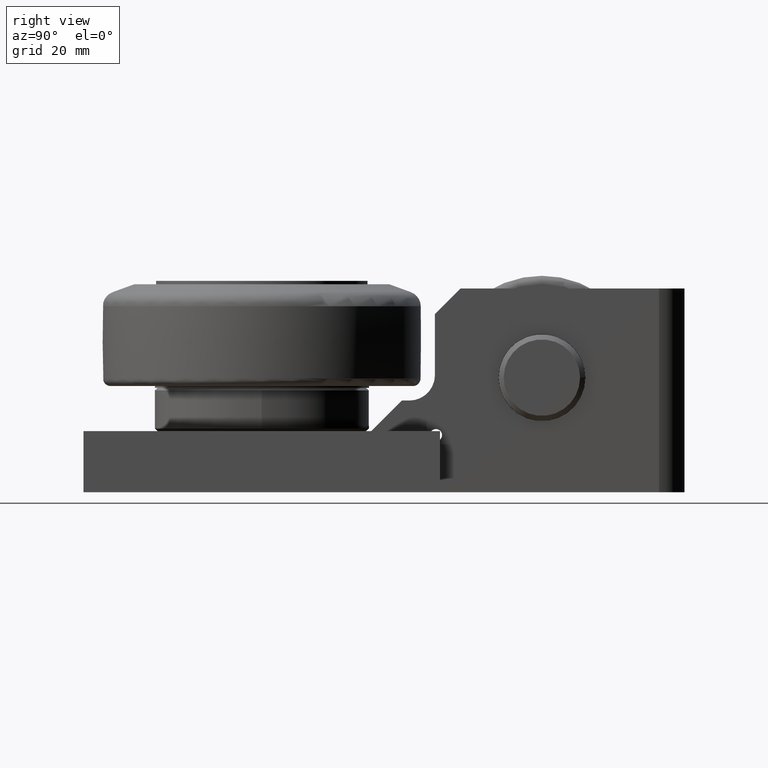
[diagram: clean part render]
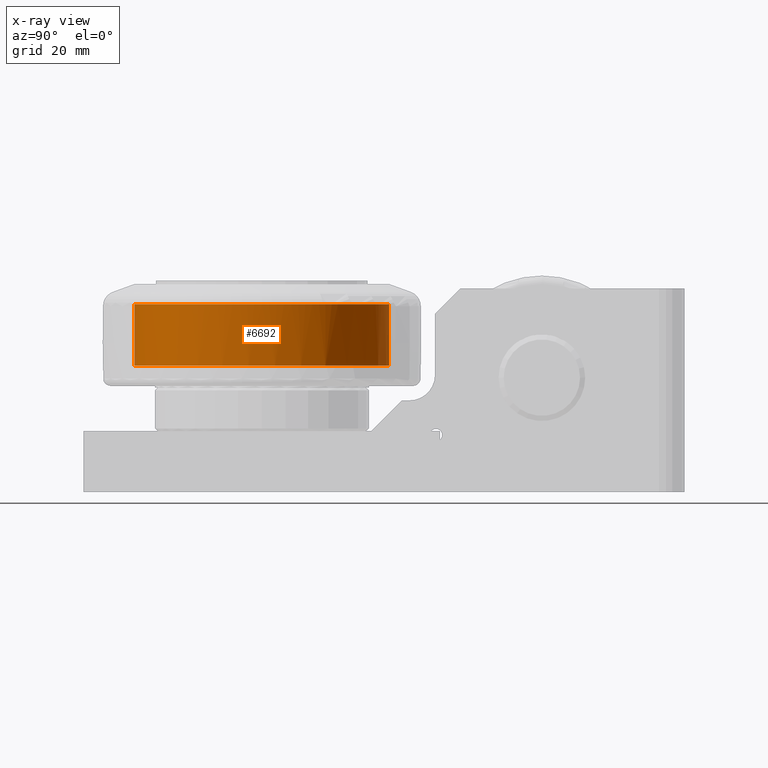
[diagram: x-ray — body ghosted, one internal face saturated and labeled with its STEP entity id]
A machine part, right view, then the same camera in x-ray: the body is ghosted and one INTERNAL B-rep face — a face not visible from any outside direction — is saturated and labeled: STEP entity #6692.
In plain terms, the highlighted cylindrical surface (partial cylindrical patch) has radius 25 mm, axis along (0, -0, 1).
Its self-contained STEP definition (entity closure, byte-faithful):
#419=FACE_OUTER_BOUND('',#813,.T.);
#813=EDGE_LOOP('',(#4751,#4752,#4753,#4754,#4755,#4756,#4757,#4758,#4759,
#4760,#4761,#4762,#4763,#4764,#4765,#4766,#4767,#4768,#4769,#4770,#4771,
#4772,#4773,#4774,#4775,#4776,#4777,#4778,#4779,#4780,#4781,#4782,#4783,
#4784,#4785,#4786,#4787,#4788,#4789,#4790,#4791,#4792,#4793,#4794,#4795,
#4796,#4797,#4798,#4799,#4800,#4801,#4802,#4803,#4804,#4805,#4806,#4807,
#4808,#4809,#4810,#4811,#4812,#4813,#4814,#4815,#4816,#4817,#4818,#4819,
#4820,#4821,#4822,#4823,#4824,#4825,#4826,#4827,#4828,#4829,#4830,#4831,
#4832,#4833,#4834,#4835,#4836,#4837,#4838));
#1205=CIRCLE('',#7164,25.);
#1206=CIRCLE('',#7165,25.);
#1209=CIRCLE('',#7169,25.);
#1210=CIRCLE('',#7170,25.);
#1211=CIRCLE('',#7171,25.);
#1212=CIRCLE('',#7172,25.);
#1213=CIRCLE('',#7173,25.);
#1214=CIRCLE('',#7174,25.);
#1215=CIRCLE('',#7175,25.);
#1216=CIRCLE('',#7176,25.);
#1217=CIRCLE('',#7177,25.);
#1218=CIRCLE('',#7178,25.);
#1219=CIRCLE('',#7179,25.);
#1220=CIRCLE('',#7180,25.);
#1221=CIRCLE('',#7181,25.);
#1222=CIRCLE('',#7182,25.);
#1223=CIRCLE('',#7183,25.);
#1224=CIRCLE('',#7184,25.);
#1225=CIRCLE('',#7185,25.);
#1226=CIRCLE('',#7186,25.);
#1227=CIRCLE('',#7187,25.);
#1228=CIRCLE('',#7188,25.);
#1229=CIRCLE('',#7189,25.);
#1230=CIRCLE('',#7190,25.);
#1231=CIRCLE('',#7191,25.);
#1232=CIRCLE('',#7192,25.);
#1233=CIRCLE('',#7193,25.);
#1234=CIRCLE('',#7194,25.);
#1235=CIRCLE('',#7195,25.);
#1236=CIRCLE('',#7196,25.);
#1857=LINE('',#10649,#2194);
#1858=LINE('',#10651,#2195);
#1866=LINE('',#10683,#2203);
#1867=LINE('',#10685,#2204);
#1990=LINE('',#11365,#2327);
#1991=LINE('',#11369,#2328);
#1992=LINE('',#11373,#2329);
#1993=LINE('',#11377,#2330);
#1994=LINE('',#11381,#2331);
#1995=LINE('',#11385,#2332);
#1996=LINE('',#11389,#2333);
#1997=LINE('',#11393,#2334);
#1998=LINE('',#11397,#2335);
#1999=LINE('',#11401,#2336);
#2000=LINE('',#11405,#2337);
#2001=LINE('',#11409,#2338);
#2002=LINE('',#11413,#2339);
#2003=LINE('',#11417,#2340);
#2004=LINE('',#11421,#2341);
#2005=LINE('',#11425,#2342);
#2006=LINE('',#11429,#2343);
#2007=LINE('',#11433,#2344);
#2008=LINE('',#11437,#2345);
#2009=LINE('',#11441,#2346);
#2010=LINE('',#11445,#2347);
#2011=LINE('',#11449,#2348);
#2012=LINE('',#11453,#2349);
#2013=LINE('',#11457,#2350);
#2014=LINE('',#11461,#2351);
#2015=LINE('',#11465,#2352);
#2016=LINE('',#11469,#2353);
#2194=VECTOR('',#8108,25.);
#2195=VECTOR('',#8109,10.);
#2203=VECTOR('',#8133,10.);
#2204=VECTOR('',#8134,25.);
#2327=VECTOR('',#8573,10.);
#2328=VECTOR('',#8576,10.);
#2329=VECTOR('',#8579,10.);
#2330=VECTOR('',#8582,10.);
#2331=VECTOR('',#8585,10.);
#2332=VECTOR('',#8588,10.);
#2333=VECTOR('',#8591,10.);
#2334=VECTOR('',#8594,10.);
#2335=VECTOR('',#8597,10.);
#2336=VECTOR('',#8600,10.);
#2337=VECTOR('',#8603,10.);
#2338=VECTOR('',#8606,10.);
#2339=VECTOR('',#8609,10.);
#2340=VECTOR('',#8612,10.);
#2341=VECTOR('',#8615,10.);
#2342=VECTOR('',#8618,10.);
#2343=VECTOR('',#8621,10.);
#2344=VECTOR('',#8624,10.);
#2345=VECTOR('',#8627,10.);
#2346=VECTOR('',#8630,10.);
#2347=VECTOR('',#8633,10.);
#2348=VECTOR('',#8636,10.);
#2349=VECTOR('',#8639,10.);
#2350=VECTOR('',#8642,10.);
#2351=VECTOR('',#8645,10.);
#2352=VECTOR('',#8648,10.);
#2353=VECTOR('',#8651,10.);
#2531=VERTEX_POINT('',#10647);
#2532=VERTEX_POINT('',#10648);
#2533=VERTEX_POINT('',#10650);
#2548=VERTEX_POINT('',#10680);
#2549=VERTEX_POINT('',#10682);
#2550=VERTEX_POINT('',#10684);
#2704=VERTEX_POINT('',#11354);
#2707=VERTEX_POINT('',#11362);
#2708=VERTEX_POINT('',#11364);
#2709=VERTEX_POINT('',#11366);
#2710=VERTEX_POINT('',#11368);
#2711=VERTEX_POINT('',#11370);
#2712=VERTEX_POINT('',#11372);
#2713=VERTEX_POINT('',#11374);
#2714=VERTEX_POINT('',#11376);
#2715=VERTEX_POINT('',#11378);
#2716=VERTEX_POINT('',#11380);
#2717=VERTEX_POINT('',#11382);
#2718=VERTEX_POINT('',#11384);
#2719=VERTEX_POINT('',#11386);
#2720=VERTEX_POINT('',#11388);
#2721=VERTEX_POINT('',#11390);
#2722=VERTEX_POINT('',#11392);
#2723=VERTEX_POINT('',#11394);
#2724=VERTEX_POINT('',#11396);
#2725=VERTEX_POINT('',#11398);
#2726=VERTEX_POINT('',#11400);
#2727=VERTEX_POINT('',#11402);
#2728=VERTEX_POINT('',#11404);
#2729=VERTEX_POINT('',#11406);
#2730=VERTEX_POINT('',#11408);
#2731=VERTEX_POINT('',#11410);
#2732=VERTEX_POINT('',#11412);
#2733=VERTEX_POINT('',#11414);
#2734=VERTEX_POINT('',#11416);
#2735=VERTEX_POINT('',#11418);
#2736=VERTEX_POINT('',#11420);
#2737=VERTEX_POINT('',#11422);
#2738=VERTEX_POINT('',#11424);
#2739=VERTEX_POINT('',#11426);
#2740=VERTEX_POINT('',#11428);
#2741=VERTEX_POINT('',#11430);
#2742=VERTEX_POINT('',#11432);
#2743=VERTEX_POINT('',#11434);
#2744=VERTEX_POINT('',#11436);
#2745=VERTEX_POINT('',#11438);
#2746=VERTEX_POINT('',#11440);
#2747=VERTEX_POINT('',#11442);
#2748=VERTEX_POINT('',#11444);
#2749=VERTEX_POINT('',#11446);
#2750=VERTEX_POINT('',#11448);
#2751=VERTEX_POINT('',#11450);
#2752=VERTEX_POINT('',#11452);
#2753=VERTEX_POINT('',#11454);
#2754=VERTEX_POINT('',#11456);
#2755=VERTEX_POINT('',#11458);
#2756=VERTEX_POINT('',#11460);
#2757=VERTEX_POINT('',#11462);
#2758=VERTEX_POINT('',#11464);
#2759=VERTEX_POINT('',#11466);
#2760=VERTEX_POINT('',#11468);
#3185=EDGE_CURVE('',#2531,#2532,#1857,.T.);
#3186=EDGE_CURVE('',#2531,#2533,#1858,.T.);
#3202=EDGE_CURVE('',#2549,#2548,#1866,.T.);
#3203=EDGE_CURVE('',#2549,#2550,#1867,.T.);
#3426=EDGE_CURVE('',#2704,#2532,#1205,.T.);
#3427=EDGE_CURVE('',#2550,#2704,#1206,.T.);
#3430=EDGE_CURVE('',#2548,#2707,#1209,.T.);
#3431=EDGE_CURVE('',#2708,#2707,#1990,.T.);
#3432=EDGE_CURVE('',#2707,#2709,#1210,.T.);
#3433=EDGE_CURVE('',#2710,#2709,#1991,.T.);
#3434=EDGE_CURVE('',#2709,#2711,#1211,.T.);
#3435=EDGE_CURVE('',#2712,#2711,#1992,.T.);
#3436=EDGE_CURVE('',#2711,#2713,#1212,.T.);
#3437=EDGE_CURVE('',#2714,#2713,#1993,.T.);
#3438=EDGE_CURVE('',#2713,#2715,#1213,.T.);
#3439=EDGE_CURVE('',#2716,#2715,#1994,.T.);
#3440=EDGE_CURVE('',#2715,#2717,#1214,.T.);
#3441=EDGE_CURVE('',#2718,#2717,#1995,.T.);
#3442=EDGE_CURVE('',#2717,#2719,#1215,.T.);
#3443=EDGE_CURVE('',#2720,#2719,#1996,.T.);
#3444=EDGE_CURVE('',#2719,#2721,#1216,.T.);
#3445=EDGE_CURVE('',#2722,#2721,#1997,.T.);
#3446=EDGE_CURVE('',#2721,#2723,#1217,.T.);
#3447=EDGE_CURVE('',#2724,#2723,#1998,.T.);
#3448=EDGE_CURVE('',#2723,#2725,#1218,.T.);
#3449=EDGE_CURVE('',#2726,#2725,#1999,.T.);
#3450=EDGE_CURVE('',#2725,#2727,#1219,.T.);
#3451=EDGE_CURVE('',#2728,#2727,#2000,.T.);
#3452=EDGE_CURVE('',#2727,#2729,#1220,.T.);
#3453=EDGE_CURVE('',#2730,#2729,#2001,.T.);
#3454=EDGE_CURVE('',#2729,#2731,#1221,.T.);
#3455=EDGE_CURVE('',#2732,#2731,#2002,.T.);
#3456=EDGE_CURVE('',#2731,#2733,#1222,.T.);
#3457=EDGE_CURVE('',#2734,#2733,#2003,.T.);
#3458=EDGE_CURVE('',#2733,#2735,#1223,.T.);
#3459=EDGE_CURVE('',#2736,#2735,#2004,.T.);
#3460=EDGE_CURVE('',#2735,#2737,#1224,.T.);
#3461=EDGE_CURVE('',#2738,#2737,#2005,.T.);
#3462=EDGE_CURVE('',#2737,#2739,#1225,.T.);
#3463=EDGE_CURVE('',#2740,#2739,#2006,.T.);
#3464=EDGE_CURVE('',#2739,#2741,#1226,.T.);
#3465=EDGE_CURVE('',#2742,#2741,#2007,.T.);
#3466=EDGE_CURVE('',#2741,#2743,#1227,.T.);
#3467=EDGE_CURVE('',#2744,#2743,#2008,.T.);
#3468=EDGE_CURVE('',#2743,#2745,#1228,.T.);
#3469=EDGE_CURVE('',#2746,#2745,#2009,.T.);
#3470=EDGE_CURVE('',#2745,#2747,#1229,.T.);
#3471=EDGE_CURVE('',#2748,#2747,#2010,.T.);
#3472=EDGE_CURVE('',#2747,#2749,#1230,.T.);
#3473=EDGE_CURVE('',#2750,#2749,#2011,.T.);
#3474=EDGE_CURVE('',#2749,#2751,#1231,.T.);
#3475=EDGE_CURVE('',#2752,#2751,#2012,.T.);
#3476=EDGE_CURVE('',#2751,#2753,#1232,.T.);
#3477=EDGE_CURVE('',#2754,#2753,#2013,.T.);
#3478=EDGE_CURVE('',#2753,#2755,#1233,.T.);
#3479=EDGE_CURVE('',#2756,#2755,#2014,.T.);
#3480=EDGE_CURVE('',#2755,#2757,#1234,.T.);
#3481=EDGE_CURVE('',#2758,#2757,#2015,.T.);
#3482=EDGE_CURVE('',#2757,#2759,#1235,.T.);
#3483=EDGE_CURVE('',#2760,#2759,#2016,.T.);
#3484=EDGE_CURVE('',#2759,#2533,#1236,.T.);
#4751=ORIENTED_EDGE('',*,*,#3185,.T.);
#4752=ORIENTED_EDGE('',*,*,#3426,.F.);
#4753=ORIENTED_EDGE('',*,*,#3427,.F.);
#4754=ORIENTED_EDGE('',*,*,#3203,.F.);
#4755=ORIENTED_EDGE('',*,*,#3202,.T.);
#4756=ORIENTED_EDGE('',*,*,#3430,.T.);
#4757=ORIENTED_EDGE('',*,*,#3431,.F.);
#4758=ORIENTED_EDGE('',*,*,#3431,.T.);
#4759=ORIENTED_EDGE('',*,*,#3432,.T.);
#4760=ORIENTED_EDGE('',*,*,#3433,.F.);
#4761=ORIENTED_EDGE('',*,*,#3433,.T.);
#4762=ORIENTED_EDGE('',*,*,#3434,.T.);
#4763=ORIENTED_EDGE('',*,*,#3435,.F.);
#4764=ORIENTED_EDGE('',*,*,#3435,.T.);
#4765=ORIENTED_EDGE('',*,*,#3436,.T.);
#4766=ORIENTED_EDGE('',*,*,#3437,.F.);
#4767=ORIENTED_EDGE('',*,*,#3437,.T.);
#4768=ORIENTED_EDGE('',*,*,#3438,.T.);
#4769=ORIENTED_EDGE('',*,*,#3439,.F.);
#4770=ORIENTED_EDGE('',*,*,#3439,.T.);
#4771=ORIENTED_EDGE('',*,*,#3440,.T.);
#4772=ORIENTED_EDGE('',*,*,#3441,.F.);
#4773=ORIENTED_EDGE('',*,*,#3441,.T.);
#4774=ORIENTED_EDGE('',*,*,#3442,.T.);
#4775=ORIENTED_EDGE('',*,*,#3443,.F.);
#4776=ORIENTED_EDGE('',*,*,#3443,.T.);
#4777=ORIENTED_EDGE('',*,*,#3444,.T.);
#4778=ORIENTED_EDGE('',*,*,#3445,.F.);
#4779=ORIENTED_EDGE('',*,*,#3445,.T.);
#4780=ORIENTED_EDGE('',*,*,#3446,.T.);
#4781=ORIENTED_EDGE('',*,*,#3447,.F.);
#4782=ORIENTED_EDGE('',*,*,#3447,.T.);
#4783=ORIENTED_EDGE('',*,*,#3448,.T.);
#4784=ORIENTED_EDGE('',*,*,#3449,.F.);
#4785=ORIENTED_EDGE('',*,*,#3449,.T.);
#4786=ORIENTED_EDGE('',*,*,#3450,.T.);
#4787=ORIENTED_EDGE('',*,*,#3451,.F.);
#4788=ORIENTED_EDGE('',*,*,#3451,.T.);
#4789=ORIENTED_EDGE('',*,*,#3452,.T.);
#4790=ORIENTED_EDGE('',*,*,#3453,.F.);
#4791=ORIENTED_EDGE('',*,*,#3453,.T.);
#4792=ORIENTED_EDGE('',*,*,#3454,.T.);
#4793=ORIENTED_EDGE('',*,*,#3455,.F.);
#4794=ORIENTED_EDGE('',*,*,#3455,.T.);
#4795=ORIENTED_EDGE('',*,*,#3456,.T.);
#4796=ORIENTED_EDGE('',*,*,#3457,.F.);
#4797=ORIENTED_EDGE('',*,*,#3457,.T.);
#4798=ORIENTED_EDGE('',*,*,#3458,.T.);
#4799=ORIENTED_EDGE('',*,*,#3459,.F.);
#4800=ORIENTED_EDGE('',*,*,#3459,.T.);
#4801=ORIENTED_EDGE('',*,*,#3460,.T.);
#4802=ORIENTED_EDGE('',*,*,#3461,.F.);
#4803=ORIENTED_EDGE('',*,*,#3461,.T.);
#4804=ORIENTED_EDGE('',*,*,#3462,.T.);
#4805=ORIENTED_EDGE('',*,*,#3463,.F.);
#4806=ORIENTED_EDGE('',*,*,#3463,.T.);
#4807=ORIENTED_EDGE('',*,*,#3464,.T.);
#4808=ORIENTED_EDGE('',*,*,#3465,.F.);
#4809=ORIENTED_EDGE('',*,*,#3465,.T.);
#4810=ORIENTED_EDGE('',*,*,#3466,.T.);
#4811=ORIENTED_EDGE('',*,*,#3467,.F.);
#4812=ORIENTED_EDGE('',*,*,#3467,.T.);
#4813=ORIENTED_EDGE('',*,*,#3468,.T.);
#4814=ORIENTED_EDGE('',*,*,#3469,.F.);
#4815=ORIENTED_EDGE('',*,*,#3469,.T.);
#4816=ORIENTED_EDGE('',*,*,#3470,.T.);
#4817=ORIENTED_EDGE('',*,*,#3471,.F.);
#4818=ORIENTED_EDGE('',*,*,#3471,.T.);
#4819=ORIENTED_EDGE('',*,*,#3472,.T.);
#4820=ORIENTED_EDGE('',*,*,#3473,.F.);
#4821=ORIENTED_EDGE('',*,*,#3473,.T.);
#4822=ORIENTED_EDGE('',*,*,#3474,.T.);
#4823=ORIENTED_EDGE('',*,*,#3475,.F.);
#4824=ORIENTED_EDGE('',*,*,#3475,.T.);
#4825=ORIENTED_EDGE('',*,*,#3476,.T.);
#4826=ORIENTED_EDGE('',*,*,#3477,.F.);
#4827=ORIENTED_EDGE('',*,*,#3477,.T.);
#4828=ORIENTED_EDGE('',*,*,#3478,.T.);
#4829=ORIENTED_EDGE('',*,*,#3479,.F.);
#4830=ORIENTED_EDGE('',*,*,#3479,.T.);
#4831=ORIENTED_EDGE('',*,*,#3480,.T.);
#4832=ORIENTED_EDGE('',*,*,#3481,.F.);
#4833=ORIENTED_EDGE('',*,*,#3481,.T.);
#4834=ORIENTED_EDGE('',*,*,#3482,.T.);
#4835=ORIENTED_EDGE('',*,*,#3483,.F.);
#4836=ORIENTED_EDGE('',*,*,#3483,.T.);
#4837=ORIENTED_EDGE('',*,*,#3484,.T.);
#4838=ORIENTED_EDGE('',*,*,#3186,.F.);
#6521=CYLINDRICAL_SURFACE('',#7168,25.);
#6692=ADVANCED_FACE('',(#419),#6521,.F.);
#7164=AXIS2_PLACEMENT_3D('',#11355,#8561,#8562);
#7165=AXIS2_PLACEMENT_3D('',#11356,#8563,#8564);
#7168=AXIS2_PLACEMENT_3D('',#11361,#8569,#8570);
#7169=AXIS2_PLACEMENT_3D('',#11363,#8571,#8572);
#7170=AXIS2_PLACEMENT_3D('',#11367,#8574,#8575);
#7171=AXIS2_PLACEMENT_3D('',#11371,#8577,#8578);
#7172=AXIS2_PLACEMENT_3D('',#11375,#8580,#8581);
#7173=AXIS2_PLACEMENT_3D('',#11379,#8583,#8584);
#7174=AXIS2_PLACEMENT_3D('',#11383,#8586,#8587);
#7175=AXIS2_PLACEMENT_3D('',#11387,#8589,#8590);
#7176=AXIS2_PLACEMENT_3D('',#11391,#8592,#8593);
#7177=AXIS2_PLACEMENT_3D('',#11395,#8595,#8596);
#7178=AXIS2_PLACEMENT_3D('',#11399,#8598,#8599);
#7179=AXIS2_PLACEMENT_3D('',#11403,#8601,#8602);
#7180=AXIS2_PLACEMENT_3D('',#11407,#8604,#8605);
#7181=AXIS2_PLACEMENT_3D('',#11411,#8607,#8608);
#7182=AXIS2_PLACEMENT_3D('',#11415,#8610,#8611);
#7183=AXIS2_PLACEMENT_3D('',#11419,#8613,#8614);
#7184=AXIS2_PLACEMENT_3D('',#11423,#8616,#8617);
#7185=AXIS2_PLACEMENT_3D('',#11427,#8619,#8620);
#7186=AXIS2_PLACEMENT_3D('',#11431,#8622,#8623);
#7187=AXIS2_PLACEMENT_3D('',#11435,#8625,#8626);
#7188=AXIS2_PLACEMENT_3D('',#11439,#8628,#8629);
#7189=AXIS2_PLACEMENT_3D('',#11443,#8631,#8632);
#7190=AXIS2_PLACEMENT_3D('',#11447,#8634,#8635);
#7191=AXIS2_PLACEMENT_3D('',#11451,#8637,#8638);
#7192=AXIS2_PLACEMENT_3D('',#11455,#8640,#8641);
#7193=AXIS2_PLACEMENT_3D('',#11459,#8643,#8644);
#7194=AXIS2_PLACEMENT_3D('',#11463,#8646,#8647);
#7195=AXIS2_PLACEMENT_3D('',#11467,#8649,#8650);
#7196=AXIS2_PLACEMENT_3D('',#11470,#8652,#8653);
#8108=DIRECTION('',(0.,1.21543267145725E-63,-1.));
#8109=DIRECTION('',(2.75908235754538E-34,-1.56475336131751E-33,1.));
#8133=DIRECTION('',(1.58889220411947E-33,3.52804941732168E-49,1.));
#8134=DIRECTION('',(0.,1.21543267145725E-63,-1.));
#8561=DIRECTION('center_axis',(0.,-1.21543267145725E-63,1.));
#8562=DIRECTION('ref_axis',(-1.21543267145725E-63,1.,1.21543267145725E-63));
#8563=DIRECTION('center_axis',(0.,-1.21543267145725E-63,1.));
#8564=DIRECTION('ref_axis',(-1.21543267145725E-63,1.,1.21543267145725E-63));
#8569=DIRECTION('center_axis',(0.,-1.21543267145725E-63,1.));
#8570=DIRECTION('ref_axis',(0.984807753012208,0.17364817766693,2.110576684754E-64));
#8571=DIRECTION('center_axis',(0.,-1.21543267145725E-63,1.));
#8572=DIRECTION('ref_axis',(-1.21543267145725E-63,1.,1.21543267145725E-63));
#8573=DIRECTION('',(1.56475336131751E-33,2.75908235754538E-34,1.));
#8574=DIRECTION('center_axis',(0.,-1.21543267145725E-63,1.));
#8575=DIRECTION('ref_axis',(-1.21543267145725E-63,1.,1.21543267145725E-63));
#8576=DIRECTION('',(1.49307027943532E-33,5.43433139381979E-34,1.));
#8577=DIRECTION('center_axis',(0.,-1.21543267145725E-63,1.));
#8578=DIRECTION('ref_axis',(-1.21543267145725E-63,1.,1.21543267145725E-63));
#8579=DIRECTION('',(1.37602101264251E-33,7.94446102059735E-34,1.));
#8580=DIRECTION('center_axis',(0.,-1.21543267145725E-63,1.));
#8581=DIRECTION('ref_axis',(-1.21543267145725E-63,1.,1.21543267145725E-63));
#8582=DIRECTION('',(1.21716204368078E-33,1.02132022193553E-33,1.));
#8583=DIRECTION('center_axis',(0.,-1.21543267145725E-63,1.));
#8584=DIRECTION('ref_axis',(-1.21543267145725E-63,1.,1.21543267145725E-63));
#8585=DIRECTION('',(1.02132022193553E-33,1.21716204368078E-33,1.));
#8586=DIRECTION('center_axis',(0.,-1.21543267145725E-63,1.));
#8587=DIRECTION('ref_axis',(-1.21543267145725E-63,1.,1.21543267145725E-63));
#8588=DIRECTION('',(7.94446102059734E-34,1.37602101264251E-33,1.));
#8589=DIRECTION('center_axis',(0.,-1.21543267145725E-63,1.));
#8590=DIRECTION('ref_axis',(-1.21543267145725E-63,1.,1.21543267145725E-63));
#8591=DIRECTION('',(5.43433139381979E-34,1.49307027943532E-33,1.));
#8592=DIRECTION('center_axis',(0.,-1.21543267145725E-63,1.));
#8593=DIRECTION('ref_axis',(-1.21543267145725E-63,1.,1.21543267145725E-63));
#8594=DIRECTION('',(2.75908235754539E-34,1.56475336131751E-33,1.));
#8595=DIRECTION('center_axis',(0.,-1.21543267145725E-63,1.));
#8596=DIRECTION('ref_axis',(-1.21543267145725E-63,1.,1.21543267145725E-63));
#8597=DIRECTION('',(1.94583175196509E-49,1.58889220411947E-33,1.));
#8598=DIRECTION('center_axis',(0.,-1.21543267145725E-63,1.));
#8599=DIRECTION('ref_axis',(-1.21543267145725E-63,1.,1.21543267145725E-63));
#8600=DIRECTION('',(-2.75908235754538E-34,1.56475336131751E-33,1.));
#8601=DIRECTION('center_axis',(0.,-1.21543267145725E-63,1.));
#8602=DIRECTION('ref_axis',(-1.21543267145725E-63,1.,1.21543267145725E-63));
#8603=DIRECTION('',(-5.43433139381979E-34,1.49307027943532E-33,1.));
#8604=DIRECTION('center_axis',(0.,-1.21543267145725E-63,1.));
#8605=DIRECTION('ref_axis',(-1.21543267145725E-63,1.,1.21543267145725E-63));
#8606=DIRECTION('',(-7.94446102059734E-34,1.37602101264251E-33,1.));
#8607=DIRECTION('center_axis',(0.,-1.21543267145725E-63,1.));
#8608=DIRECTION('ref_axis',(-1.21543267145725E-63,1.,1.21543267145725E-63));
#8609=DIRECTION('',(-1.02132022193553E-33,1.21716204368078E-33,1.));
#8610=DIRECTION('center_axis',(0.,-1.21543267145725E-63,1.));
#8611=DIRECTION('ref_axis',(-1.21543267145725E-63,1.,1.21543267145725E-63));
#8612=DIRECTION('',(-1.21716204368078E-33,1.02132022193553E-33,1.));
#8613=DIRECTION('center_axis',(0.,-1.21543267145725E-63,1.));
#8614=DIRECTION('ref_axis',(-1.21543267145725E-63,1.,1.21543267145725E-63));
#8615=DIRECTION('',(-1.37602101264251E-33,7.94446102059735E-34,1.));
#8616=DIRECTION('center_axis',(0.,-1.21543267145725E-63,1.));
#8617=DIRECTION('ref_axis',(-1.21543267145725E-63,1.,1.21543267145725E-63));
#8618=DIRECTION('',(-1.49307027943532E-33,5.4343313938198E-34,1.));
#8619=DIRECTION('center_axis',(0.,-1.21543267145725E-63,1.));
#8620=DIRECTION('ref_axis',(-1.21543267145725E-63,1.,1.21543267145725E-63));
#8621=DIRECTION('',(-1.56475336131751E-33,2.75908235754538E-34,1.));
#8622=DIRECTION('center_axis',(0.,-1.21543267145725E-63,1.));
#8623=DIRECTION('ref_axis',(-1.21543267145725E-63,1.,1.21543267145725E-63));
#8624=DIRECTION('',(-1.58889220411947E-33,3.52804941732169E-49,1.));
#8625=DIRECTION('center_axis',(0.,-1.21543267145725E-63,1.));
#8626=DIRECTION('ref_axis',(-1.21543267145725E-63,1.,1.21543267145725E-63));
#8627=DIRECTION('',(-1.56475336131751E-33,-2.75908235754538E-34,1.));
#8628=DIRECTION('center_axis',(0.,-1.21543267145725E-63,1.));
#8629=DIRECTION('ref_axis',(-1.21543267145725E-63,1.,1.21543267145725E-63));
#8630=DIRECTION('',(-1.49307027943532E-33,-5.43433139381978E-34,1.));
#8631=DIRECTION('center_axis',(0.,-1.21543267145725E-63,1.));
#8632=DIRECTION('ref_axis',(-1.21543267145725E-63,1.,1.21543267145725E-63));
#8633=DIRECTION('',(-1.37602101264251E-33,-7.94446102059735E-34,1.));
#8634=DIRECTION('center_axis',(0.,-1.21543267145725E-63,1.));
#8635=DIRECTION('ref_axis',(-1.21543267145725E-63,1.,1.21543267145725E-63));
#8636=DIRECTION('',(-1.21716204368078E-33,-1.02132022193553E-33,1.));
#8637=DIRECTION('center_axis',(0.,-1.21543267145725E-63,1.));
#8638=DIRECTION('ref_axis',(-1.21543267145725E-63,1.,1.21543267145725E-63));
#8639=DIRECTION('',(-1.02132022193553E-33,-1.21716204368078E-33,1.));
#8640=DIRECTION('center_axis',(0.,-1.21543267145725E-63,1.));
#8641=DIRECTION('ref_axis',(-1.21543267145725E-63,1.,1.21543267145725E-63));
#8642=DIRECTION('',(-7.94446102059735E-34,-1.37602101264251E-33,1.));
#8643=DIRECTION('center_axis',(0.,-1.21543267145725E-63,1.));
#8644=DIRECTION('ref_axis',(-1.21543267145725E-63,1.,1.21543267145725E-63));
#8645=DIRECTION('',(-5.4343313938198E-34,-1.49307027943532E-33,1.));
#8646=DIRECTION('center_axis',(0.,-1.21543267145725E-63,1.));
#8647=DIRECTION('ref_axis',(-1.21543267145725E-63,1.,1.21543267145725E-63));
#8648=DIRECTION('',(-2.75908235754538E-34,-1.56475336131751E-33,1.));
#8649=DIRECTION('center_axis',(0.,-1.21543267145725E-63,1.));
#8650=DIRECTION('ref_axis',(-1.21543267145725E-63,1.,1.21543267145725E-63));
#8651=DIRECTION('',(1.93119149631053E-96,-1.58889220411947E-33,1.));
#8652=DIRECTION('center_axis',(0.,-1.21543267145725E-63,1.));
#8653=DIRECTION('ref_axis',(-1.21543267145725E-63,1.,1.21543267145725E-63));
#10647=CARTESIAN_POINT('',(-29.4399433153772,-24.8145587261993,4.9));
#10648=CARTESIAN_POINT('',(-29.4399433153772,-24.8145587261993,4.8));
#10649=CARTESIAN_POINT('',(-29.4399433153772,-24.8145587261993,10.85));
#10650=CARTESIAN_POINT('',(-29.4399433153772,-24.8145587261993,16.9));
#10651=CARTESIAN_POINT('',(-29.4399433153772,-24.8145587261993,4.9));
#10680=CARTESIAN_POINT('',(-4.81974949007195,-45.4733542845261,16.9));
#10682=CARTESIAN_POINT('',(-4.81974949007195,-45.4733542845261,4.9));
#10683=CARTESIAN_POINT('',(-4.81974949007195,-45.4733542845261,4.9));
#10684=CARTESIAN_POINT('',(-4.81974949007195,-45.4733542845261,4.8));
#10685=CARTESIAN_POINT('',(-4.81974949007195,-45.4733542845261,10.85));
#11354=CARTESIAN_POINT('',(-4.81974949007196,4.52664571547393,4.8));
#11355=CARTESIAN_POINT('Origin',(-4.81974949007196,-20.4733542845261,4.8));
#11356=CARTESIAN_POINT('Origin',(-4.81974949007196,-20.4733542845261,4.8));
#11361=CARTESIAN_POINT('Origin',(-4.81974949007196,-20.4733542845261,10.85));
#11362=CARTESIAN_POINT('',(-0.478545048398696,-45.0935481098313,16.9));
#11363=CARTESIAN_POINT('Origin',(-4.81974949007196,-20.4733542845261,16.9));
#11364=CARTESIAN_POINT('',(-0.478545048398696,-45.0935481098313,4.9));
#11365=CARTESIAN_POINT('',(-0.478545048398696,-45.0935481098313,4.9));
#11366=CARTESIAN_POINT('',(3.73075409306977,-43.9656698041738,16.9));
#11367=CARTESIAN_POINT('Origin',(-4.81974949007196,-20.4733542845261,16.9));
#11368=CARTESIAN_POINT('',(3.73075409306977,-43.9656698041738,4.9));
#11369=CARTESIAN_POINT('',(3.73075409306977,-43.9656698041738,4.9));
#11370=CARTESIAN_POINT('',(7.68025050992804,-42.123989379137,16.9));
#11371=CARTESIAN_POINT('Origin',(-4.81974949007196,-20.4733542845261,16.9));
#11372=CARTESIAN_POINT('',(7.68025050992804,-42.123989379137,4.9));
#11373=CARTESIAN_POINT('',(7.68025050992804,-42.123989379137,4.9));
#11374=CARTESIAN_POINT('',(11.2499407520915,-39.6244653625005,16.9));
#11375=CARTESIAN_POINT('Origin',(-4.81974949007196,-20.4733542845261,16.9));
#11376=CARTESIAN_POINT('',(11.2499407520915,-39.6244653625005,4.9));
#11377=CARTESIAN_POINT('',(11.2499407520915,-39.6244653625005,4.9));
#11378=CARTESIAN_POINT('',(14.3313615879025,-36.5430445266896,16.9));
#11379=CARTESIAN_POINT('Origin',(-4.81974949007196,-20.4733542845261,16.9));
#11380=CARTESIAN_POINT('',(14.3313615879025,-36.5430445266896,4.9));
#11381=CARTESIAN_POINT('',(14.3313615879025,-36.5430445266896,4.9));
#11382=CARTESIAN_POINT('',(16.830885604539,-32.9733542845261,16.9));
#11383=CARTESIAN_POINT('Origin',(-4.81974949007196,-20.4733542845261,16.9));
#11384=CARTESIAN_POINT('',(16.830885604539,-32.9733542845261,4.9));
#11385=CARTESIAN_POINT('',(16.830885604539,-32.9733542845261,4.9));
#11386=CARTESIAN_POINT('',(18.6725660295758,-29.0238578676678,16.9));
#11387=CARTESIAN_POINT('Origin',(-4.81974949007196,-20.4733542845261,16.9));
#11388=CARTESIAN_POINT('',(18.6725660295758,-29.0238578676678,4.9));
#11389=CARTESIAN_POINT('',(18.6725660295758,-29.0238578676678,4.9));
#11390=CARTESIAN_POINT('',(19.8004443352333,-24.8145587261993,16.9));
#11391=CARTESIAN_POINT('Origin',(-4.81974949007196,-20.4733542845261,16.9));
#11392=CARTESIAN_POINT('',(19.8004443352333,-24.8145587261993,4.9));
#11393=CARTESIAN_POINT('',(19.8004443352333,-24.8145587261993,4.9));
#11394=CARTESIAN_POINT('',(20.1802505099281,-20.4733542845261,16.9));
#11395=CARTESIAN_POINT('Origin',(-4.81974949007196,-20.4733542845261,16.9));
#11396=CARTESIAN_POINT('',(20.1802505099281,-20.4733542845261,4.9));
#11397=CARTESIAN_POINT('',(20.1802505099281,-20.4733542845261,4.9));
#11398=CARTESIAN_POINT('',(19.8004443352333,-16.1321498428528,16.9));
#11399=CARTESIAN_POINT('Origin',(-4.81974949007196,-20.4733542845261,16.9));
#11400=CARTESIAN_POINT('',(19.8004443352333,-16.1321498428528,4.9));
#11401=CARTESIAN_POINT('',(19.8004443352333,-16.1321498428528,4.9));
#11402=CARTESIAN_POINT('',(18.6725660295758,-11.9228507013844,16.9));
#11403=CARTESIAN_POINT('Origin',(-4.81974949007196,-20.4733542845261,16.9));
#11404=CARTESIAN_POINT('',(18.6725660295758,-11.9228507013844,4.9));
#11405=CARTESIAN_POINT('',(18.6725660295758,-11.9228507013844,4.9));
#11406=CARTESIAN_POINT('',(16.830885604539,-7.97335428452608,16.9));
#11407=CARTESIAN_POINT('Origin',(-4.81974949007196,-20.4733542845261,16.9));
#11408=CARTESIAN_POINT('',(16.830885604539,-7.97335428452608,4.9));
#11409=CARTESIAN_POINT('',(16.830885604539,-7.97335428452608,4.9));
#11410=CARTESIAN_POINT('',(14.3313615879025,-4.40366404236259,16.9));
#11411=CARTESIAN_POINT('Origin',(-4.81974949007196,-20.4733542845261,16.9));
#11412=CARTESIAN_POINT('',(14.3313615879025,-4.40366404236259,4.9));
#11413=CARTESIAN_POINT('',(14.3313615879025,-4.40366404236259,4.9));
#11414=CARTESIAN_POINT('',(11.2499407520915,-1.32224320655162,16.9));
#11415=CARTESIAN_POINT('Origin',(-4.81974949007196,-20.4733542845261,16.9));
#11416=CARTESIAN_POINT('',(11.2499407520915,-1.32224320655162,4.9));
#11417=CARTESIAN_POINT('',(11.2499407520915,-1.32224320655162,4.9));
#11418=CARTESIAN_POINT('',(7.68025050992805,1.17728081008489,16.9));
#11419=CARTESIAN_POINT('Origin',(-4.81974949007196,-20.4733542845261,16.9));
#11420=CARTESIAN_POINT('',(7.68025050992805,1.17728081008489,4.9));
#11421=CARTESIAN_POINT('',(7.68025050992805,1.17728081008489,4.9));
#11422=CARTESIAN_POINT('',(3.73075409306978,3.01896123512164,16.9));
#11423=CARTESIAN_POINT('Origin',(-4.81974949007196,-20.4733542845261,16.9));
#11424=CARTESIAN_POINT('',(3.73075409306978,3.01896123512164,4.9));
#11425=CARTESIAN_POINT('',(3.73075409306978,3.01896123512164,4.9));
#11426=CARTESIAN_POINT('',(-0.478545048398697,4.14683954077913,16.9));
#11427=CARTESIAN_POINT('Origin',(-4.81974949007196,-20.4733542845261,16.9));
#11428=CARTESIAN_POINT('',(-0.478545048398697,4.14683954077913,4.9));
#11429=CARTESIAN_POINT('',(-0.478545048398696,4.14683954077913,4.9));
#11430=CARTESIAN_POINT('',(-4.81974949007195,4.52664571547393,16.9));
#11431=CARTESIAN_POINT('Origin',(-4.81974949007196,-20.4733542845261,16.9));
#11432=CARTESIAN_POINT('',(-4.81974949007195,4.52664571547393,4.9));
#11433=CARTESIAN_POINT('',(-4.81974949007195,4.52664571547393,4.9));
#11434=CARTESIAN_POINT('',(-9.16095393174521,4.14683954077913,16.9));
#11435=CARTESIAN_POINT('Origin',(-4.81974949007196,-20.4733542845261,16.9));
#11436=CARTESIAN_POINT('',(-9.16095393174521,4.14683954077913,4.9));
#11437=CARTESIAN_POINT('',(-9.16095393174521,4.14683954077913,4.9));
#11438=CARTESIAN_POINT('',(-13.3702530732137,3.01896123512164,16.9));
#11439=CARTESIAN_POINT('Origin',(-4.81974949007196,-20.4733542845261,16.9));
#11440=CARTESIAN_POINT('',(-13.3702530732137,3.01896123512164,4.9));
#11441=CARTESIAN_POINT('',(-13.3702530732137,3.01896123512164,4.9));
#11442=CARTESIAN_POINT('',(-17.319749490072,1.17728081008489,16.9));
#11443=CARTESIAN_POINT('Origin',(-4.81974949007196,-20.4733542845261,16.9));
#11444=CARTESIAN_POINT('',(-17.319749490072,1.17728081008489,4.9));
#11445=CARTESIAN_POINT('',(-17.319749490072,1.17728081008489,4.9));
#11446=CARTESIAN_POINT('',(-20.8894397322354,-1.32224320655162,16.9));
#11447=CARTESIAN_POINT('Origin',(-4.81974949007196,-20.4733542845261,16.9));
#11448=CARTESIAN_POINT('',(-20.8894397322354,-1.32224320655162,4.9));
#11449=CARTESIAN_POINT('',(-20.8894397322354,-1.32224320655162,4.9));
#11450=CARTESIAN_POINT('',(-23.9708605680464,-4.40366404236258,16.9));
#11451=CARTESIAN_POINT('Origin',(-4.81974949007196,-20.4733542845261,16.9));
#11452=CARTESIAN_POINT('',(-23.9708605680464,-4.40366404236258,4.9));
#11453=CARTESIAN_POINT('',(-23.9708605680464,-4.40366404236258,4.9));
#11454=CARTESIAN_POINT('',(-26.4703845846829,-7.97335428452606,16.9));
#11455=CARTESIAN_POINT('Origin',(-4.81974949007196,-20.4733542845261,16.9));
#11456=CARTESIAN_POINT('',(-26.4703845846829,-7.97335428452606,4.9));
#11457=CARTESIAN_POINT('',(-26.4703845846829,-7.97335428452606,4.9));
#11458=CARTESIAN_POINT('',(-28.3120650097197,-11.9228507013843,16.9));
#11459=CARTESIAN_POINT('Origin',(-4.81974949007196,-20.4733542845261,16.9));
#11460=CARTESIAN_POINT('',(-28.3120650097197,-11.9228507013843,4.9));
#11461=CARTESIAN_POINT('',(-28.3120650097197,-11.9228507013843,4.9));
#11462=CARTESIAN_POINT('',(-29.4399433153772,-16.1321498428528,16.9));
#11463=CARTESIAN_POINT('Origin',(-4.81974949007196,-20.4733542845261,16.9));
#11464=CARTESIAN_POINT('',(-29.4399433153772,-16.1321498428528,4.9));
#11465=CARTESIAN_POINT('',(-29.4399433153772,-16.1321498428528,4.9));
#11466=CARTESIAN_POINT('',(-29.819749490072,-20.4733542845261,16.9));
#11467=CARTESIAN_POINT('Origin',(-4.81974949007196,-20.4733542845261,16.9));
#11468=CARTESIAN_POINT('',(-29.819749490072,-20.4733542845261,4.9));
#11469=CARTESIAN_POINT('',(-29.819749490072,-20.4733542845261,4.9));
#11470=CARTESIAN_POINT('Origin',(-4.81974949007196,-20.4733542845261,16.9));